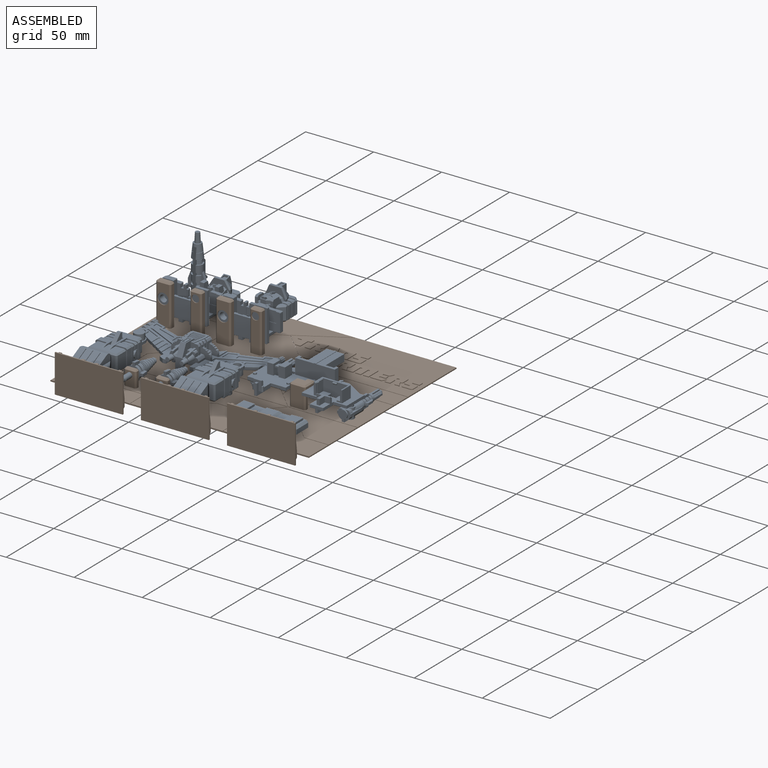
[diagram: assembled view]
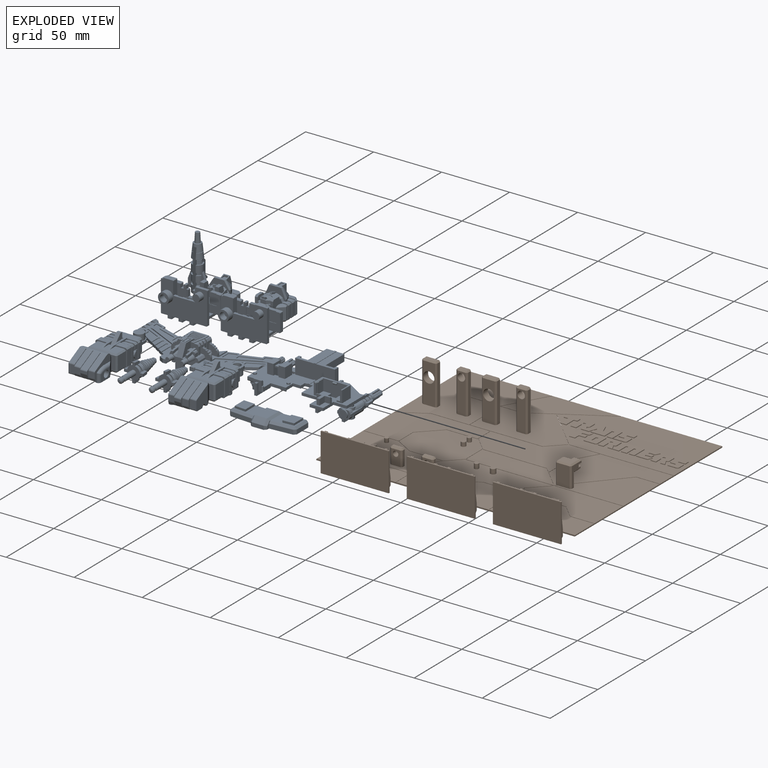
[diagram: exploded view]
GUIDED TOUR — FREECAD ASSEMBLY "Combiner_Parts_Rack"

This assembly has 2 components, labeled P0..P1 below (a component is one placed body or linked part; the same part can appear more than once), held together by 0 modeled joints plus 1 derived contact edge. A joint is a constraint between two components; its type names the relative motion it leaves free:
  CONTACT — a derived adjacency edge — the two components touch in the source model (clearance under 2% of the assembly's diagonal); it is measured from the geometry, not a modeled constraint.
Axis/direction vectors are unit vectors and 'through' points are millimeter coordinates, both in the assembly's world frame.

MATES
  1. CONTACT "contact_0_1": P0 <-> P1, contact direction (1.000, 0.000, 0.000) through (16.46, 60.73, 12.58) mm (derived from contact, not a modeled constraint)

ASSEMBLY ORDER
  1. P0 — the base component [order heuristic]
  2. P1 [order heuristic]
Order-tag legend:
  [order heuristic] — this assembly is geometrically interlocked (no collision-free removal order exists), so components are listed in mate-graph order; insertion feasibility is not verified.

Of the 2 components, 1 carries a construction recipe — the FreeCAD feature program (sketches with constraints, then the solid features that consume them) that regenerates the part from scratch, quoted from this document or from the linked companion document it references; the rest are supplied as boundary geometry only. The tour below walks the components in assembly order: each is shown spotlighted twice — in the assembled view, then in the exploded view, where a leader line traces a displaced component back to its assembled socket (components that stay in place when exploded have no leader line; saturated green if recipe-attached, orange if geometry-only; every other component desaturated gray) — followed by its recipe or geometry summary and the mates that hold it.
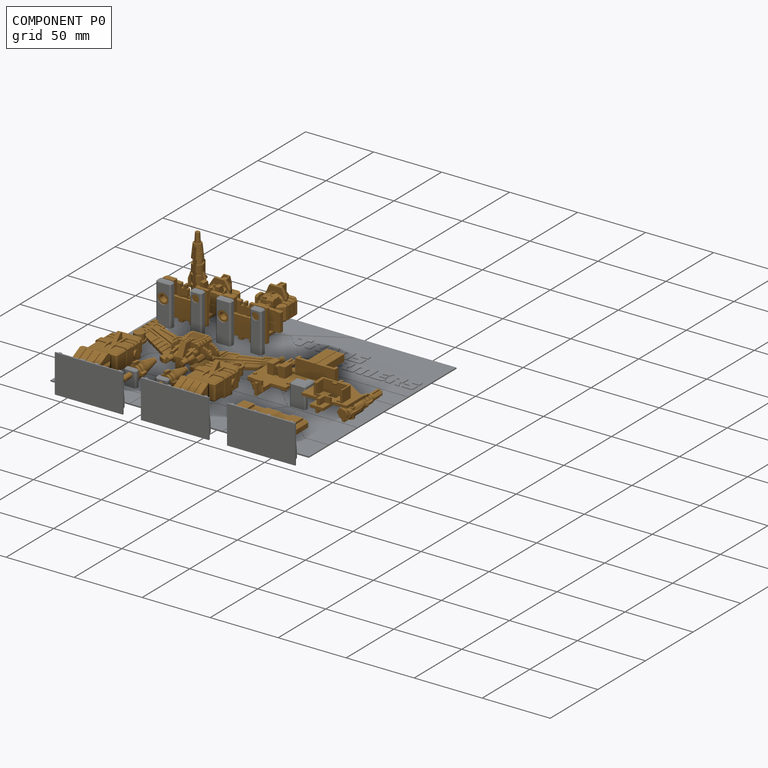
[diagram: component P0 — assembled]
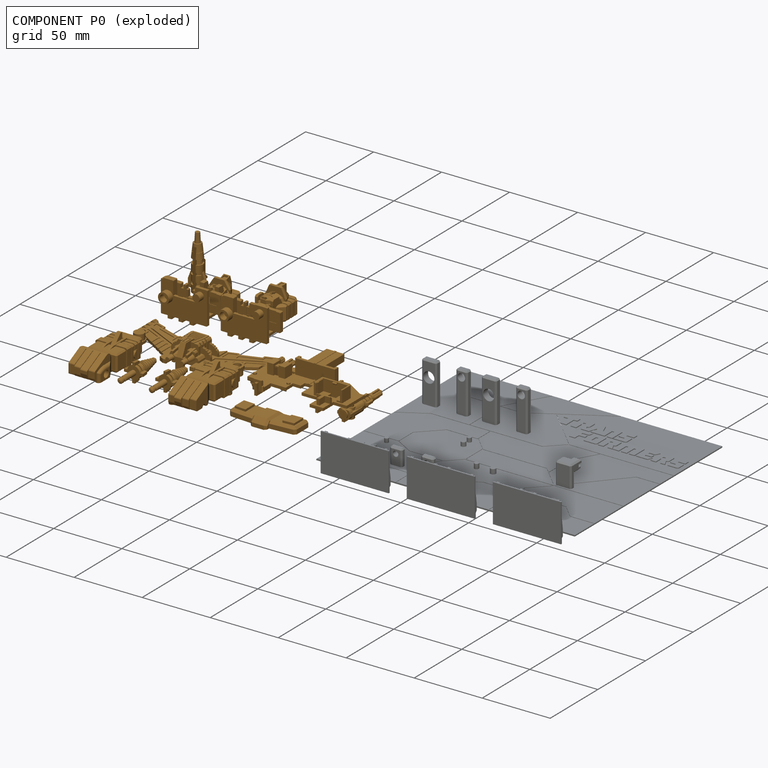
[diagram: component P0 — exploded]
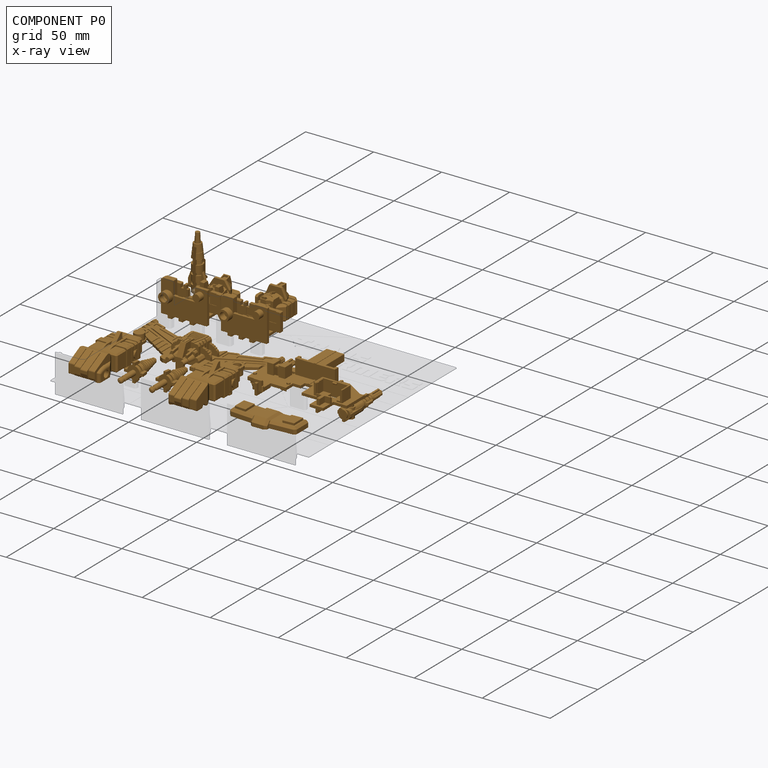
[diagram: component P0 — x-ray view]
COMPONENT P0 — geometry summary ("Combiner_Parts"; no construction recipe available for this part):
  bounding box: 182.3 x 149.0 x 46.6 mm
  tessellated surface: 151,697 triangles
  volume: 55757 mm^3 (4% of its bounding box)
Held by: resting contact with P1 (derived edge).
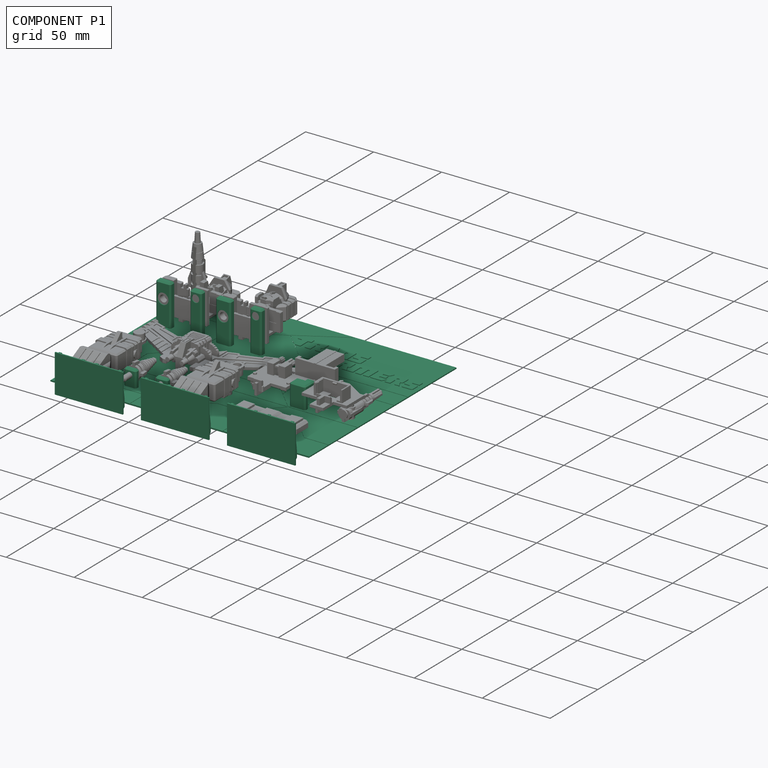
[diagram: component P1 — assembled]
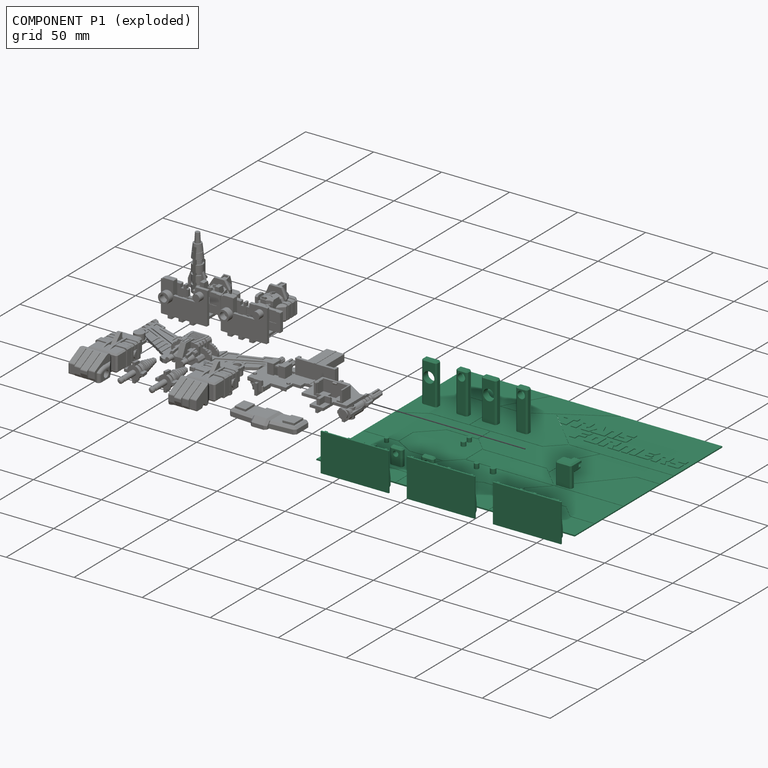
[diagram: component P1 — exploded]
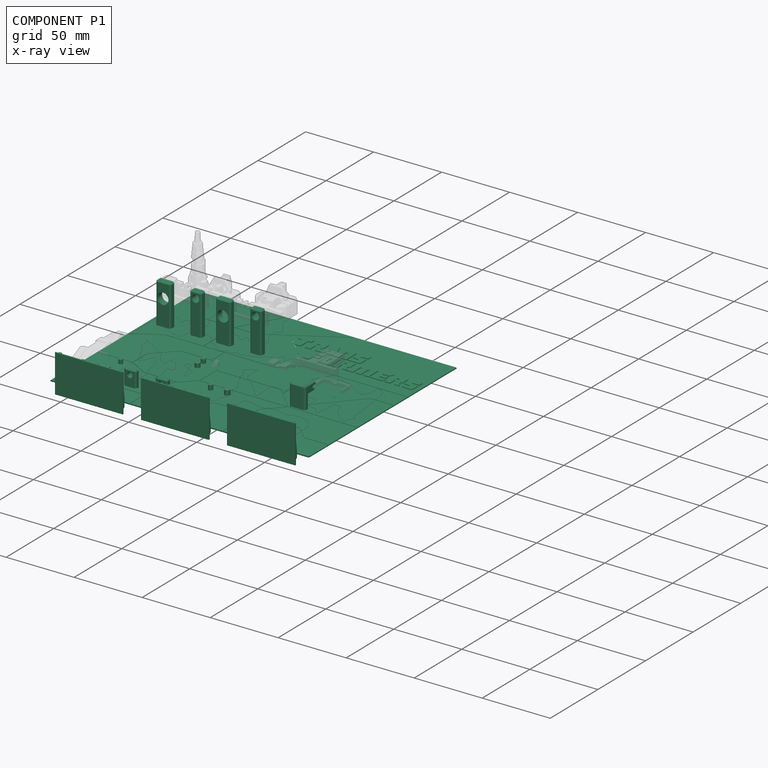
[diagram: component P1 — x-ray view]
COMPONENT P1 — recipe-attached ("Rack", modeled in this document).
Held by: resting contact with P0 (derived edge).
Construction recipe (the document's own serialized feature program — sketch geometry with constraints, then the solid features built on it; lengths are millimeters unless a unit is written):

FEATURE [Sketcher::SketchObject] Sketch
  ArcFitTolerance = 1e-06
  AttachmentOffset = pos=(0,0,-13) rot=(0,0,1;0rad)
  AttachmentSupport = -> [XY_Plane005]
  FullyConstrained = true
  MakeInternals = false
  MapMode = 5
  Placement = pos=(0,0,-13) rot=(0,0,1;0rad)
  sketch-geometry (8):
    g0: LineSegment StartX=-61 StartY=110 StartZ=0 EndX=-61 EndY=-45 EndZ=0
    g1: LineSegment StartX=-61 StartY=-45 StartZ=0 EndX=129 EndY=-45 EndZ=0
    g2: LineSegment StartX=129 StartY=-45 StartZ=0 EndX=129 EndY=110 EndZ=0
    g3: LineSegment StartX=129 StartY=110 StartZ=0 EndX=-61 EndY=110 EndZ=0
    g4: LineSegment StartX=2.33333 StartY=110 StartZ=0 EndX=2.33333 EndY=-45 EndZ=0
    g5: LineSegment StartX=65.6667 StartY=110 StartZ=0 EndX=65.6667 EndY=-45 EndZ=0
    g6: LineSegment StartX=-61 StartY=58.3333 StartZ=0 EndX=129 EndY=58.3333 EndZ=0
    g7: LineSegment StartX=-61 StartY=6.66667 StartZ=0 EndX=129 EndY=6.66667 EndZ=0
  constraints (28):
    c: Coincident(g0,g1)
    c: Coincident(g1,g2)
    c: Coincident(g2,g3)
    c: Coincident(g3,g0)
    c: Vertical(g0)
    c: Vertical(g2)
    c: Horizontal(g1)
    c: Horizontal(g3)
    c: DistanceX(g1,g1) = 190
    c: DistanceY(g0,g0) = 155
    c: DistanceX(g0,g-1) = 61
    c: DistanceY(g0,g-1) = 45
    c: PointOnObject(g4,g3)
    c: PointOnObject(g4,g1)
    c: Vertical(g4)
    c: PointOnObject(g5,g3)
    c: PointOnObject(g5,g1)
    c: Vertical(g5)
    c: DistanceX(g0,g4) = 63.3333
    c: DistanceX(g5,g1) = 63.3333
    c: PointOnObject(g6,g0)
    c: PointOnObject(g6,g2)
    c: Horizontal(g6)
    c: PointOnObject(g7,g0)
    c: PointOnObject(g7,g2)
    c: Horizontal(g7)
    c: DistanceY(g6,g0) = 51.6667
    c: DistanceY(g0,g7) = 51.6667
FEATURE [PartDesign::Body] Body  label="Pattern"
  AllowCompound = false
  Group = -> [Sketch]
  Origin = -> Origin005
FEATURE [PartDesign::SubShapeBinder] Binder017
  BindCopyOnChange = 0
  BindMode = 2
  ClaimChildren = false
  Context = -> <external ../../Accessories/CAD_Files/Accesories.FCStd>#Part [Body036.Binder017.]
  Fuse = false
  MakeFace = true
  OffsetFill = false
  OffsetIntersection = false
  OffsetJoinType = 0
  OffsetOpenResult = false
  PartialLoad = false
  Refine = true
  Relative = true
  _Version = 2
FEATURE [PartDesign::SubShapeBinder] Binder018
  BindCopyOnChange = 0
  BindMode = 2
  ClaimChildren = false
  Context = -> <external ../../Accessories/CAD_Files/Accesories.FCStd>#Part [Body036.Binder018.]
  Fuse = false
  MakeFace = true
  OffsetFill = false
  OffsetIntersection = false
  OffsetJoinType = 0
  OffsetOpenResult = false
  PartialLoad = false
  Refine = true
  Relative = true
  _Version = 2
FEATURE [Sketcher::SketchObject] Sketch436
  ArcFitTolerance = 1e-06
  AttachmentSupport = -> [Binder017]
  ExternalGeometry = -> [Binder017]
  FullyConstrained = true
  MakeInternals = false
  MapMode = 5
  Placement = pos=(0,-1.06e-14,-48) rot=(1,0,0;3.14159rad)
  sketch-geometry (12):
    g0: LineSegment StartX=-5.95 StartY=0.05 StartZ=0 EndX=-21.05 EndY=0.05 EndZ=0
    g1: LineSegment StartX=-21.05 StartY=0.05 StartZ=0 EndX=-21.05 EndY=-1.05 EndZ=0
    g2: LineSegment StartX=-21.05 StartY=-1.05 StartZ=0 EndX=-5.95 EndY=-1.05 EndZ=0
    g3: LineSegment StartX=-5.95 StartY=-1.05 StartZ=0 EndX=-5.95 EndY=0.05 EndZ=0
    g4: LineSegment StartX=-23 StartY=2 StartZ=0 EndX=-23 EndY=-3 EndZ=0
    g5: LineSegment StartX=-23 StartY=-3 StartZ=0 EndX=-4 EndY=-3 EndZ=0
    g6: LineSegment StartX=-4 StartY=-3 StartZ=0 EndX=-4 EndY=2 EndZ=0
    g7: LineSegment StartX=-4 StartY=2 StartZ=0 EndX=-23 EndY=2 EndZ=0
    g8: LineSegment StartX=-32.95 StartY=0.05 StartZ=0 EndX=-48.05 EndY=0.05 EndZ=0
    g9: LineSegment StartX=-48.05 StartY=0.05 StartZ=0 EndX=-48.05 EndY=-1.05 EndZ=0
    g10: LineSegment StartX=-48.05 StartY=-1.05 StartZ=0 EndX=-32.95 EndY=-1.05 EndZ=0
    g11: LineSegment StartX=-32.95 StartY=-1.05 StartZ=0 EndX=-32.95 EndY=0.05 EndZ=0
  constraints (38):
    c: Coincident(g0,g1)
    c: Coincident(g1,g2)
    c: Coincident(g2,g3)
    c: Coincident(g3,g0)
    c: Horizontal(g0)
    c: Horizontal(g2)
    c: Vertical(g1)
    c: Vertical(g3)
    c: Coincident(g4,g5)
    c: Coincident(g5,g6)
    c: Coincident(g6,g7)
    c: Coincident(g7,g4)
    c: Vertical(g4)
    c: Vertical(g6)
    c: Horizontal(g5)
    c: Horizontal(g7)
    c: Coincident(g8,g9)
    c: Coincident(g9,g10)
    c: Coincident(g10,g11)
    c: Coincident(g11,g8)
    c: Horizontal(g8)
    c: Horizontal(g10)
    c: Vertical(g9)
    c: Vertical(g11)
    c: DistanceX(g8,g8) = 15.1
    c: DistanceX(g-4,g-4) = 15
    c: DistanceY(g-4,g-5) = 1
    c: DistanceY(g11,g11) = 1.1
    c: DistanceX(g9,g-4) = 0.05
    c: DistanceY(g9,g-4) = 0.05
    c: DistanceY(g1,g1) = 1.1
    c: DistanceX(g0,g0) = 15.1
    c: DistanceX(g1,g-7) = 0.05
    c: DistanceY(g-6,g0) = 0.05
    c: DistanceX(g7,g7) = 19
    c: DistanceY(g4,g4) = 5
    c: DistanceY(g-6,g6) = 2
    c: DistanceX(g4,g-6) = 2
FEATURE [PartDesign::Pad] Pad278
  Direction = (0,0,-1)
  Length = 2.9
  Length2 = 10
  Profile = -> Sketch436
  ReferenceAxis = -> Sketch436 [N_Axis]
  Refine = true
  Reversed = true
  Suppressed = false
  Type = 0
FEATURE [Sketcher::SketchObject] Sketch437
  ArcFitTolerance = 1e-06
  AttachmentSupport = -> [Binder018]
  ExternalGeometry = -> [Binder018]
  FullyConstrained = true
  MakeInternals = false
  MapMode = 5
  Placement = pos=(0,-1.06e-14,-48) rot=(1,0,0;3.14159rad)
  sketch-geometry (8):
    g0: LineSegment StartX=-32.95 StartY=0.05 StartZ=0 EndX=-48.05 EndY=0.05 EndZ=0
    g1: LineSegment StartX=-48.05 StartY=0.05 StartZ=0 EndX=-48.05 EndY=-1.05 EndZ=0
    g2: LineSegment StartX=-48.05 StartY=-1.05 StartZ=0 EndX=-32.95 EndY=-1.05 EndZ=0
    g3: LineSegment StartX=-32.95 StartY=-1.05 StartZ=0 EndX=-32.95 EndY=0.05 EndZ=0
    g4: LineSegment StartX=-50 StartY=2 StartZ=0 EndX=-50 EndY=-3 EndZ=0
    g5: LineSegment StartX=-50 StartY=-3 StartZ=0 EndX=-31 EndY=-3 EndZ=0
    g6: LineSegment StartX=-31 StartY=-3 StartZ=0 EndX=-31 EndY=2 EndZ=0
    g7: LineSegment StartX=-31 StartY=2 StartZ=0 EndX=-50 EndY=2 EndZ=0
  constraints (25):
    c: Coincident(g0,g1)
    c: Coincident(g1,g2)
    c: Coincident(g2,g3)
    c: Coincident(g3,g0)
    c: Horizontal(g0)
    c: Horizontal(g2)
    c: Vertical(g1)
    c: Vertical(g3)
    c: Coincident(g4,g5)
    c: Coincident(g5,g6)
    c: Coincident(g6,g7)
    c: Coincident(g7,g4)
    c: Vertical(g4)
    c: Vertical(g6)
    c: Horizontal(g5)
    c: Horizontal(g7)
    c: DistanceX(g-3,g-3) = 15
    c: DistanceX(g0,g0) = 15.1
    c: DistanceY(g3,g3) = 1.1
    c: DistanceX(g-4,g2) = 0.05
    c: DistanceY(g2,g-4) = 0.05
    c: DistanceY(g4,g4) = 5
    c: DistanceX(g7,g7) = 19
    c: DistanceX(g-3,g6) = 2
    c: DistanceY(g-3,g4) = 2
FEATURE [Sketcher::SketchObject] Sketch438
  ArcFitTolerance = 1e-06
  AttachmentSupport = -> [Pad278]
  ExternalGeometry = -> [Pad278]
  FullyConstrained = true
  MakeInternals = false
  MapMode = 5
  Placement = pos=(0,0,-48) rot=(1,0,0;3.14159rad)
  sketch-geometry (4):
    g0: LineSegment StartX=-2 StartY=12 StartZ=0 EndX=-52 EndY=12 EndZ=0
    g1: LineSegment StartX=-52 StartY=12 StartZ=0 EndX=-52 EndY=-6 EndZ=0
    g2: LineSegment StartX=-52 StartY=-6 StartZ=0 EndX=-2 EndY=-6 EndZ=0
    g3: LineSegment StartX=-2 StartY=-6 StartZ=0 EndX=-2 EndY=12 EndZ=0
  constraints (13):
    c: Coincident(g0,g1)
    c: Coincident(g1,g2)
    c: Coincident(g2,g3)
    c: Coincident(g3,g0)
    c: Horizontal(g0)
    c: Horizontal(g2)
    c: Vertical(g1)
    c: Vertical(g3)
    c: DistanceX(g0,g0) = 50
    c: DistanceX(g-4,g-4) = 19
    c: DistanceY(g1,g1) = 18
    c: DistanceX(g-7,g2) = 3.95
    c: DistanceY(g2,g-5) = 3
FEATURE [PartDesign::Pad] Pad279
  BaseFeature = -> Pad278
  Direction = (0,0,-1)
  Length = 2
  Length2 = 10
  Profile = -> Sketch438
  ReferenceAxis = -> Sketch438 [N_Axis]
  Refine = true
  Suppressed = false
  Type = 0
FEATURE [PartDesign::Pad] Pad280
  BaseFeature = -> Pad279
  Direction = (0,0,-1)
  Length = 2.9
  Length2 = 10
  Profile = -> Sketch437
  ReferenceAxis = -> Sketch437 [N_Axis]
  Refine = true
  Reversed = true
  Suppressed = false
  Type = 0
FEATURE [Sketcher::SketchObject] Sketch439
  ArcFitTolerance = 1e-06
  AttachmentSupport = -> [Pad280]
  ExternalGeometry = -> [Pad280]
  FullyConstrained = true
  MakeInternals = false
  MapMode = 5
  Placement = pos=(-50,0,0) rot=(0.57735,-0.57735,-0.57735;2.0944rad)
  sketch-geometry (6):
    g0: LineSegment StartX=-3 StartY=-45.1 StartZ=0 EndX=-3 EndY=-48 EndZ=0
    g1: LineSegment StartX=-3 StartY=-48 StartZ=0 EndX=-6 EndY=-48 EndZ=0
    g2: LineSegment StartX=-6 StartY=-48 StartZ=0 EndX=-3 EndY=-45.1 EndZ=0
    g3: LineSegment StartX=2 StartY=-45.1 StartZ=0 EndX=2 EndY=-48 EndZ=0
    g4: LineSegment StartX=2 StartY=-48 StartZ=0 EndX=12 EndY=-48 EndZ=0
    g5: LineSegment StartX=12 StartY=-48 StartZ=0 EndX=2 EndY=-45.1 EndZ=0
  constraints (12):
    c: Coincident(g0,g-4)
    c: Coincident(g0,g-4)
    c: Coincident(g1,g0)
    c: Coincident(g1,g-7)
    c: Coincident(g2,g1)
    c: Coincident(g2,g0)
    c: Coincident(g3,g-3)
    c: Coincident(g3,g-3)
    c: Coincident(g4,g3)
    c: Coincident(g4,g-7)
    c: Coincident(g5,g4)
    c: Coincident(g5,g3)
FEATURE [PartDesign::Pad] Pad281
  BaseFeature = -> Pad280
  Direction = (-1,0,0)
  Length = 2
  Length2 = 10
  Profile = -> Sketch439
  ReferenceAxis = -> Sketch439 [N_Axis]
  Refine = true
  Reversed = true
  Suppressed = false
  Type = 0
FEATURE [Sketcher::SketchObject] Sketch440
  ArcFitTolerance = 1e-06
  AttachmentSupport = -> [Pad281]
  ExternalGeometry = -> [Pad281]
  FullyConstrained = true
  MakeInternals = false
  MapMode = 5
  Placement = pos=(-4,0,0) rot=(0.57735,0.57735,0.57735;2.0944rad)
  sketch-geometry (6):
    g0: LineSegment StartX=-2 StartY=-45.1 StartZ=0 EndX=-12 EndY=-48 EndZ=0
    g1: LineSegment StartX=-12 StartY=-48 StartZ=0 EndX=-2 EndY=-48 EndZ=0
    g2: LineSegment StartX=-2 StartY=-48 StartZ=0 EndX=-2 EndY=-45.1 EndZ=0
    g3: LineSegment StartX=3 StartY=-45.1 StartZ=0 EndX=3 EndY=-48 EndZ=0
    g4: LineSegment StartX=3 StartY=-48 StartZ=0 EndX=6 EndY=-48 EndZ=0
    g5: LineSegment StartX=6 StartY=-48 StartZ=0 EndX=3 EndY=-45.1 EndZ=0
  constraints (12):
    c: Coincident(g0,g-4)
    c: Coincident(g0,g-5)
    c: Coincident(g1,g0)
    c: Coincident(g1,g-3)
    c: Coincident(g2,g1)
    c: Coincident(g2,g0)
    c: Coincident(g3,g-7)
    c: Coincident(g3,g-6)
    c: Coincident(g4,g3)
    c: Coincident(g4,g-7)
    c: Coincident(g5,g4)
    c: Coincident(g5,g3)
FEATURE [PartDesign::Pad] Pad282
  BaseFeature = -> Pad281
  Direction = (1,0,0)
  Length = 2
  Length2 = 10
  Profile = -> Sketch440
  ReferenceAxis = -> Sketch440 [N_Axis]
  Refine = true
  Reversed = true
  Suppressed = false
  Type = 0
FEATURE [Sketcher::SketchObject] Sketch441
  ArcFitTolerance = 1e-06
  AttachmentSupport = -> [Pad282]
  ExternalGeometry = -> [Pad282]
  FullyConstrained = true
  MakeInternals = false
  MapMode = 5
  Placement = pos=(-31,0,0) rot=(0.57735,0.57735,0.57735;2.0944rad)
  sketch-geometry (6):
    g0: LineSegment StartX=-2 StartY=-45.1 StartZ=0 EndX=-12 EndY=-48 EndZ=0
    g1: LineSegment StartX=-12 StartY=-48 StartZ=0 EndX=-2 EndY=-48 EndZ=0
    g2: LineSegment StartX=-2 StartY=-48 StartZ=0 EndX=-2 EndY=-45.1 EndZ=0
    g3: LineSegment StartX=3 StartY=-48 StartZ=0 EndX=6 EndY=-48 EndZ=0
    g4: LineSegment StartX=6 StartY=-48 StartZ=0 EndX=3 EndY=-45.1 EndZ=0
    g5: LineSegment StartX=3 StartY=-45.1 StartZ=0 EndX=3 EndY=-48 EndZ=0
  constraints (12):
    c: Coincident(g0,g-3)
    c: Coincident(g0,g-5)
    c: Coincident(g1,g0)
    c: Coincident(g1,g-3)
    c: Coincident(g2,g1)
    c: Coincident(g2,g0)
    c: Coincident(g3,g-4)
    c: Coincident(g3,g-6)
    c: Coincident(g4,g3)
    c: Coincident(g4,g-4)
    c: Coincident(g5,g4)
    c: Coincident(g5,g3)
FEATURE [PartDesign::Pad] Pad283
  BaseFeature = -> Pad282
  Direction = (1,0,0)
  Length = 2
  Length2 = 10
  Profile = -> Sketch441
  ReferenceAxis = -> Sketch441 [N_Axis]
  Refine = true
  Reversed = true
  Suppressed = false
  Type = 0
FEATURE [Sketcher::SketchObject] Sketch442
  ArcFitTolerance = 1e-06
  AttachmentSupport = -> [Pad283]
  ExternalGeometry = -> [Pad283]
  FullyConstrained = true
  MakeInternals = false
  MapMode = 5
  Placement = pos=(-23,0,0) rot=(0.57735,-0.57735,-0.57735;2.0944rad)
  sketch-geometry (6):
    g0: LineSegment StartX=2 StartY=-45.1 StartZ=0 EndX=12 EndY=-48 EndZ=0
    g1: LineSegment StartX=12 StartY=-48 StartZ=0 EndX=2 EndY=-48 EndZ=0
    g2: LineSegment StartX=2 StartY=-48 StartZ=0 EndX=2 EndY=-45.1 EndZ=0
    g3: LineSegment StartX=-3 StartY=-45.1 StartZ=0 EndX=-6 EndY=-48 EndZ=0
    g4: LineSegment StartX=-6 StartY=-48 StartZ=0 EndX=-3 EndY=-48 EndZ=0
    g5: LineSegment StartX=-3 StartY=-48 StartZ=0 EndX=-3 EndY=-45.1 EndZ=0
  constraints (12):
    c: Coincident(g0,g-4)
    c: Coincident(g0,g-5)
    c: Coincident(g1,g0)
    c: Coincident(g1,g-4)
    c: Coincident(g2,g1)
    c: Coincident(g2,g0)
    c: Coincident(g3,g-3)
    c: Coincident(g3,g-6)
    c: Coincident(g4,g3)
    c: Coincident(g4,g-3)
    c: Coincident(g5,g4)
    c: Coincident(g5,g3)
FEATURE [PartDesign::Pad] Pad284
  BaseFeature = -> Pad283
  Direction = (-1,0,0)
  Length = 2
  Length2 = 10
  Profile = -> Sketch442
  ReferenceAxis = -> Sketch442 [N_Axis]
  Refine = true
  Reversed = true
  Suppressed = false
  Type = 0
FEATURE [PartDesign::Chamfer] Chamfer012
  Angle = 45
  Base = -> Pad284 [Edge26,Edge24,Edge23,Edge28,Edge69,Edge21,Edge67,Edge38,Edge40,Edge31,Edge42,Edge44]
  BaseFeature = -> Pad284
  ChamferType = 0
  FlipDirection = false
  Refine = true
  Size = 1
  Size2 = 1
  SupportTransform = false
  Suppressed = false
  UseAllEdges = false
FEATURE [PartDesign::Pad] Pad285
  BaseFeature = -> Chamfer012
  Direction = (0,-1,0)
  Length = 10
  Length2 = 10
  Profile = -> Chamfer012 [Face1]
  Refine = true
  Suppressed = false
  Type = 0
FEATURE [Sketcher::SketchObject] Sketch443
  ArcFitTolerance = 1e-06
  AttachmentSupport = -> [Pad285]
  ExternalGeometry = -> [Pad285]
  FullyConstrained = true
  MakeInternals = false
  MapMode = 5
  Placement = pos=(-50,0,-1.095e-13) rot=(0.57735,-0.57735,-0.57735;2.0944rad)
  sketch-geometry (3):
    g0: LineSegment StartX=2 StartY=-45.1 StartZ=0 EndX=12 EndY=-48 EndZ=0
    g1: LineSegment StartX=12 StartY=-48 StartZ=0 EndX=22 EndY=-48 EndZ=0
    g2: LineSegment StartX=22 StartY=-48 StartZ=0 EndX=2 EndY=-45.1 EndZ=0
  constraints (6):
    c: Coincident(g0,g-3)
    c: Coincident(g0,g-4)
    c: Coincident(g1,g0)
    c: Coincident(g1,g-4)
    c: Coincident(g2,g1)
    c: Coincident(g2,g0)
FEATURE [PartDesign::Pad] Pad286
  BaseFeature = -> Pad285
  Direction = (-1,0,-2.2e-15)
  Length = 2
  Length2 = 10
  Profile = -> Sketch443
  ReferenceAxis = -> Sketch443 [N_Axis]
  Refine = true
  Reversed = true
  Suppressed = false
  Type = 0
FEATURE [Sketcher::SketchObject] Sketch444
  ArcFitTolerance = 1e-06
  AttachmentSupport = -> [Pad286]
  ExternalGeometry = -> [Pad286]
  FullyConstrained = true
  MakeInternals = false
  MapMode = 5
  Placement = pos=(-33,0,0) rot=(0.57735,-0.57735,-0.57735;2.0944rad)
  sketch-geometry (3):
    g0: LineSegment StartX=2 StartY=-45.1 StartZ=0 EndX=12 EndY=-48 EndZ=0
    g1: LineSegment StartX=12 StartY=-48 StartZ=0 EndX=22 EndY=-48 EndZ=0
    g2: LineSegment StartX=22 StartY=-48 StartZ=0 EndX=2 EndY=-45.1 EndZ=0
  constraints (6):
    c: Coincident(g0,g-3)
    c: Coincident(g0,g-4)
    c: Coincident(g1,g0)
    c: Coincident(g1,g-4)
    c: Coincident(g2,g1)
    c: Coincident(g2,g0)
FEATURE [PartDesign::Pad] Pad287
  BaseFeature = -> Pad286
  Direction = (-1,0,0)
  Length = 2
  Length2 = 10
  Profile = -> Sketch444
  ReferenceAxis = -> Sketch444 [N_Axis]
  Refine = true
  Reversed = true
  Suppressed = false
  Type = 0
FEATURE [Sketcher::SketchObject] Sketch445
  ArcFitTolerance = 1e-06
  AttachmentSupport = -> [Pad287]
  ExternalGeometry = -> [Pad287]
  FullyConstrained = true
  MakeInternals = false
  MapMode = 5
  Placement = pos=(-21,0,1.05e-14) rot=(0.57735,0.57735,0.57735;2.0944rad)
  sketch-geometry (3):
    g0: LineSegment StartX=-2 StartY=-45.1 StartZ=0 EndX=-12 EndY=-48 EndZ=0
    g1: LineSegment StartX=-12 StartY=-48 StartZ=0 EndX=-22 EndY=-48 EndZ=0
    g2: LineSegment StartX=-22 StartY=-48 StartZ=0 EndX=-2 EndY=-45.1 EndZ=0
  constraints (6):
    c: Coincident(g0,g-3)
    c: Coincident(g0,g-4)
    c: Coincident(g1,g0)
    c: Coincident(g1,g-4)
    c: Coincident(g2,g1)
    c: Coincident(g2,g0)
FEATURE [PartDesign::Pad] Pad288
  BaseFeature = -> Pad287
  Direction = (1,0,0)
  Length = 2
  Length2 = 10
  Profile = -> Sketch445
  ReferenceAxis = -> Sketch445 [N_Axis]
  Refine = true
  Reversed = true
  Suppressed = false
  Type = 0
FEATURE [Sketcher::SketchObject] Sketch446
  ArcFitTolerance = 1e-06
  AttachmentSupport = -> [Pad288]
  ExternalGeometry = -> [Pad288]
  FullyConstrained = true
  MakeInternals = false
  MapMode = 5
  Placement = pos=(-4,0,0) rot=(0.57735,0.57735,0.57735;2.0944rad)
  sketch-geometry (3):
    g0: LineSegment StartX=-22 StartY=-48 StartZ=0 EndX=-12 EndY=-48 EndZ=0
    g1: LineSegment StartX=-12 StartY=-48 StartZ=0 EndX=-2 EndY=-45.1 EndZ=0
    g2: LineSegment StartX=-2 StartY=-45.1 StartZ=0 EndX=-22 EndY=-48 EndZ=0
  constraints (6):
    c: Coincident(g0,g-4)
    c: Coincident(g0,g-4)
    c: Coincident(g1,g0)
    c: Coincident(g1,g-3)
    c: Coincident(g2,g1)
    c: Coincident(g2,g0)
FEATURE [PartDesign::Pad] Pad289
  BaseFeature = -> Pad288
  Direction = (1,0,0)
  Length = 2
  Length2 = 10
  Profile = -> Sketch446
  ReferenceAxis = -> Sketch446 [N_Axis]
  Refine = true
  Reversed = true
  Suppressed = false
  Type = 0
FEATURE [Sketcher::SketchObject] Sketch447
  ArcFitTolerance = 1e-06
  AttachmentSupport = -> [Pad289]
  ExternalGeometry = -> [Pad289]
  FullyConstrained = true
  MakeInternals = false
  MapMode = 5
  Placement = pos=(0,0,-48) rot=(0,0,1;0rad)
  sketch-geometry (8):
    g0: LineSegment StartX=-25.9 StartY=0.95 StartZ=0 EndX=-25.9 EndY=4.05 EndZ=0
    g1: LineSegment StartX=-25.9 StartY=4.05 StartZ=0 EndX=-28 EndY=4.05 EndZ=0
    g2: LineSegment StartX=-28 StartY=4.05 StartZ=0 EndX=-28 EndY=0.95 EndZ=0
    g3: LineSegment StartX=-28 StartY=0.95 StartZ=0 EndX=-25.9 EndY=0.95 EndZ=0
    g4: LineSegment StartX=-28.95 StartY=5 StartZ=0 EndX=-28.95 EndY=-1.07e-14 EndZ=0
    g5: LineSegment StartX=-28.95 StartY=-1.04e-14 StartZ=0 EndX=-24.95 EndY=-1.04e-14 EndZ=0
    g6: LineSegment StartX=-24.95 StartY=5 StartZ=0 EndX=-28.95 EndY=5 EndZ=0
    g7: LineSegment StartX=-24.95 StartY=-1.04e-14 StartZ=0 EndX=-24.95 EndY=5 EndZ=0
  constraints (25):
    c: Coincident(g0,g1)
    c: Coincident(g1,g2)
    c: Coincident(g2,g3)
    c: Coincident(g3,g0)
    c: Vertical(g0)
    c: Vertical(g2)
    c: Horizontal(g1)
    c: Horizontal(g3)
    c: DistanceX(g1,g1) = 2.1
    c: DistanceY(g2,g2) = 3.1
    c: DistanceX(g-3,g-3) = 8
    c: DistanceX(g-3,g1) = 3
    c: DistanceY(g1,g-3) = 0.95
    c: Coincident(g4,g5)
    c: Coincident(g6,g4)
    c: Vertical(g4)
    c: Horizontal(g5)
    c: Horizontal(g6)
    c: DistanceX(g4,g1) = 0.95
    c: DistanceX(g0,g6) = 0.95
    c: DistanceY(g1,g4) = 0.95
    c: DistanceY(g5,g0) = 0.95
    c: Coincident(g7,g5)
    c: Coincident(g7,g6)
    c: Vertical(g7)
FEATURE [PartDesign::Pad] Pad290
  BaseFeature = -> Pad289
  Direction = (0,0,1)
  Length = 2.5
  Length2 = 10
  Profile = -> Sketch447
  ReferenceAxis = -> Sketch447 [N_Axis]
  Refine = true
  Suppressed = false
  Type = 0
FEATURE [PartDesign::Body] Body036  label="Foot1"
  AllowCompound = false
  Group = -> [Binder017,Sketch436,Pad278,Binder018,Sketch437,Sketch438,Pad279,Pad280,Sketch439,Pad281,Sketch440,Pad282,Sketch441,Pad283,Sketch442,Pad284,Chamfer012,Pad285,Sketch443,Pad286,Sketch444,Pad287,Sketch445,Pad288,Sketch446,Pad289,Sketch447,Pad290]
  Origin = -> Origin039
  Placement = pos=(-2.33,0,-12) rot=(1,0,0;4.71239rad)
  Tip = -> Pad290
PROVENANCE & LICENSES
Assembly and component geometry: a FreeCAD (.FCStd) document from a public repository crawl; components, placements and joints were extracted with FreeCAD and each solid tessellated.
Construction recipes: the document's own serialized feature recipes (and, for linked parts, the recipes of companion documents from the same project).
License: as declared in the source repository (recorded in the dataset sidecar).
Joints: native FreeCAD joints and A2plus constraints are mapped to standard mate types; edges marked 'derived from contact' connect touching components and are measured from the geometry, not modeled.
Verification: 1 of this assembly's 2 components carries a construction recipe (1 from this document itself); the rest are geometry-only. Every component's tessellation passed the extraction mesh gates (mesh-volume checksum against the B-rep where available, bounding-box inflation <= 2%).
Renders: orthographic iso camera (az 35 / el 25); the floor grid conveys scale (grid pitch printed in each image; no ruler). In the exploded view each component is displaced by its stored offset vector: the offsets alone carry the explosion direction (mate normal/axis signs are not orientation cues and do not encode it), and separation distances are assigned per mate-chain, not proportionally to assembly-order depth.
